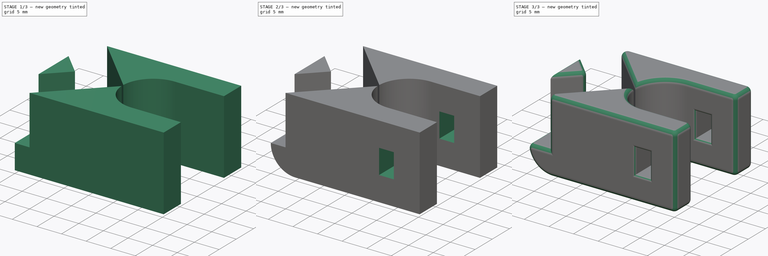
[diagram: build sequence overview — one tinted view per stage of 3, left to right]
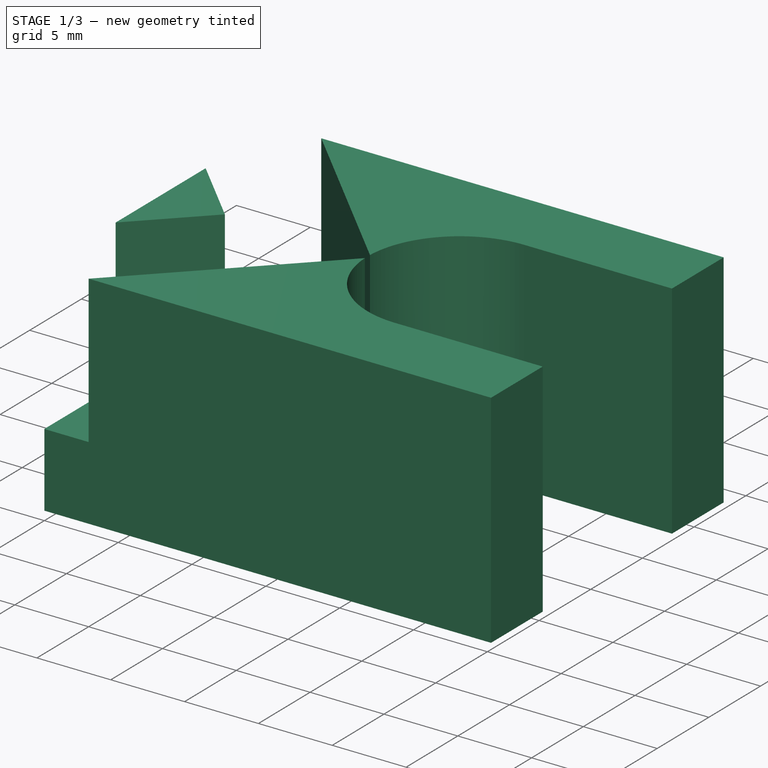
[diagram: stage 1 of 3 — iso view after this stage's code; geometry added in this stage tinted green]
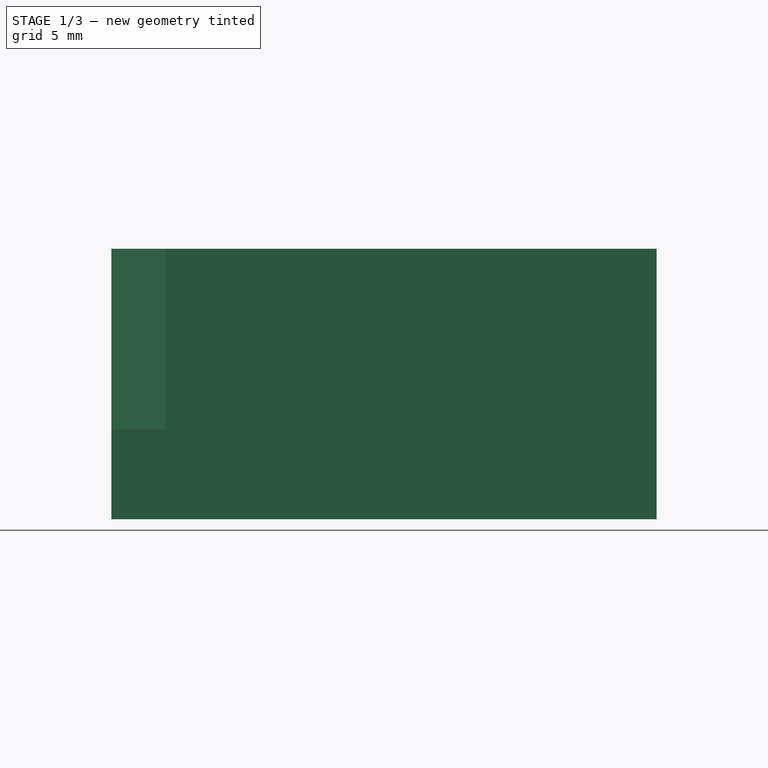
[diagram: stage 1 of 3 — front view after this stage's code; geometry added in this stage tinted green]
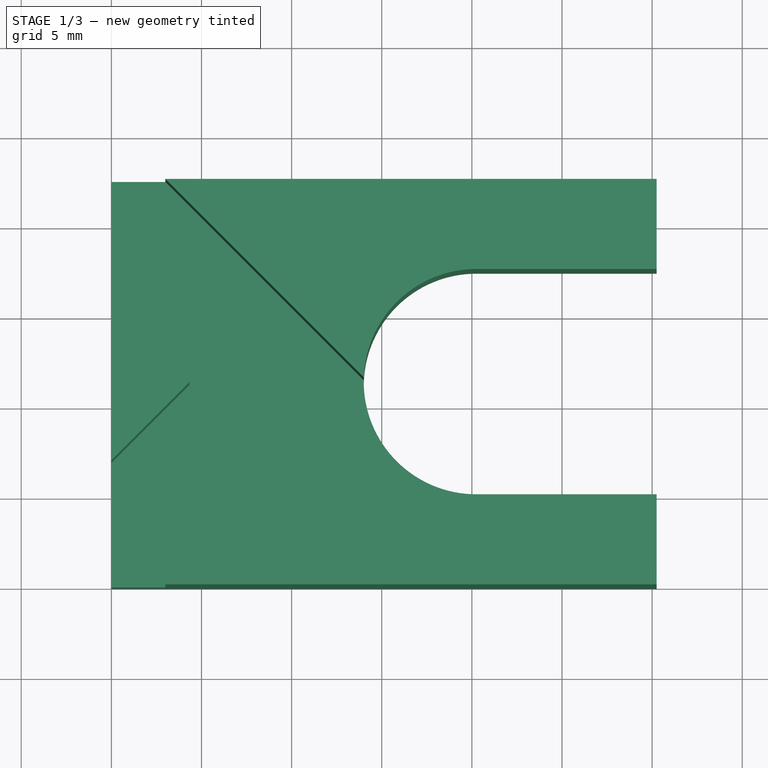
[diagram: stage 1 of 3 — top view after this stage's code; geometry added in this stage tinted green]
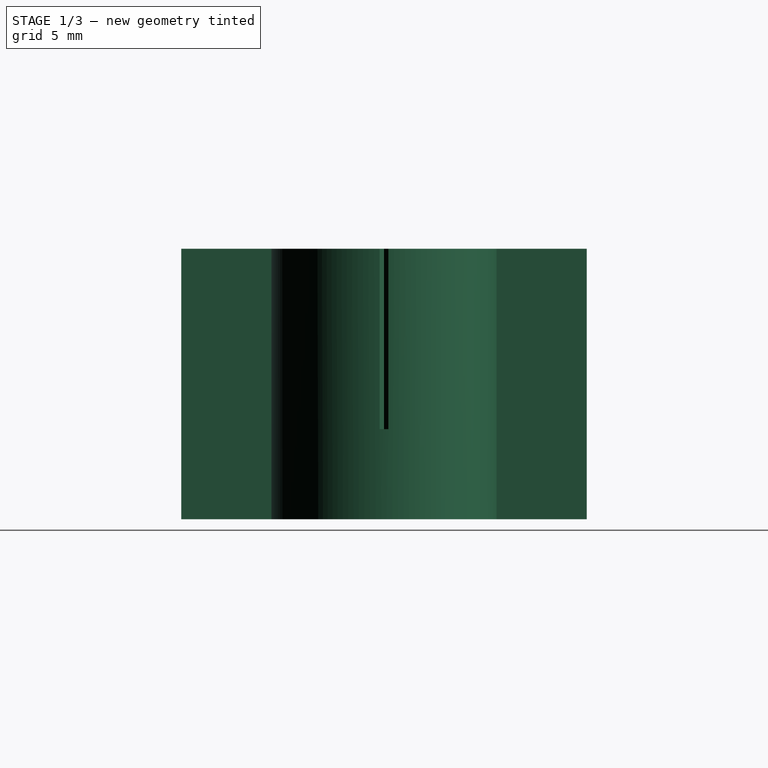
[diagram: stage 1 of 3 — right view after this stage's code; geometry added in this stage tinted green]
FCSTD DOCUMENT  (FreeCAD 0.19R)
Label: balkon_sichtschutz_ecke_v1
License: All rights reserved
LicenseURL: http://en.wikipedia.org/wiki/All_rights_reserved
objects: Sketcher::SketchObject×3, PartDesign::Fillet×3, PartDesign::Pocket×2, PartDesign::Pad×1, PartDesign::Body×1
note: 16 computed .brp shape members not serialized (recipe doc carries the construction recipe); baked Part::Feature solids carry a one-line shape summary decoded from their .brp

FEATURE [Sketcher::SketchObject] Sketch
  FullyConstrained = true
  MapMode = 5
  Support = -> [XY_Plane]
  sketch-geometry (8):
    g0: ArcOfCircle CenterX=20.25 CenterY=11.25 CenterZ=0 NormalX=0 NormalY=0 NormalZ=1 AngleXU=0 Radius=6.25 StartAngle=1.5708 EndAngle=4.71239
    g1: LineSegment StartX=20.25 StartY=17.5 StartZ=0 EndX=30.25 EndY=17.5 EndZ=0
    g2: LineSegment StartX=30.25 StartY=17.5 StartZ=0 EndX=30.25 EndY=22.5 EndZ=0
    g3: LineSegment StartX=30.25 StartY=22.5 StartZ=0 EndX=0 EndY=22.5 EndZ=0
    g4: LineSegment StartX=0 StartY=22.5 StartZ=0 EndX=0 EndY=0 EndZ=0
    g5: LineSegment StartX=0 StartY=0 StartZ=0 EndX=30.25 EndY=0 EndZ=0
    g6: LineSegment StartX=30.25 StartY=0 StartZ=0 EndX=30.25 EndY=5 EndZ=0
    g7: LineSegment StartX=30.25 StartY=5 StartZ=0 EndX=20.25 EndY=5 EndZ=0
  constraints (23):
    c: Horizontal(g1)
    c: Coincident(g1,g2)
    c: Vertical(g2)
    c: Coincident(g2,g3)
    c: Horizontal(g3)
    c: Coincident(g3,g4)
    c: Vertical(g4)
    c: Coincident(g4,g5)
    c: Horizontal(g5)
    c: Coincident(g5,g6)
    c: Vertical(g6)
    c: Coincident(g6,g7)
    c: Horizontal(g7)
    c: Tangent(g0,g1) = 1.5708
    c: Coincident(g0,g7)
    c: Vertical(g1,g6)
    c: Equal(g2,g6)
    c: Vertical(g0,g0)
    c: DistanceX(g0,g5) = 10
    c: DistanceY(g1,g2) = 5
    c: DistanceX(g4,g0) = 20.25
    c: Coincident(g-1,g4)
    c: Radius(g0) = 6.25
FEATURE [PartDesign::Pad] Pad
  Direction = (1,1,1)
  Length = 15
  Length2 = 100
  Profile = -> Sketch
  Type = 0
FEATURE [Sketcher::SketchObject] Sketch001
  FullyConstrained = true
  MapMode = 5
  Placement = pos=(0,0,15) rot=(0,0,1;0rad)
  Support = -> [Pad]
  sketch-geometry (6):
    g0: LineSegment StartX=-0.75 StartY=16.35 StartZ=0 EndX=-0.75 EndY=26.25 EndZ=0
    g1: LineSegment StartX=-0.75 StartY=26.25 StartZ=0 EndX=14.25 EndY=11.25 EndZ=0
    g2: LineSegment StartX=14.25 StartY=11.25 StartZ=0 EndX=-0.75 EndY=-3.75 EndZ=0
    g3: LineSegment StartX=-0.75 StartY=-3.75 StartZ=0 EndX=-0.75 EndY=6.15 EndZ=0
    g4: LineSegment StartX=-0.75 StartY=6.15 StartZ=0 EndX=4.35 EndY=11.25 EndZ=0
    g5: LineSegment StartX=4.35 StartY=11.25 StartZ=0 EndX=-0.75 EndY=16.35 EndZ=0
  constraints (19):
    c: Vertical(g0)
    c: Coincident(g0,g1)
    c: Coincident(g1,g2)
    c: Coincident(g2,g3)
    c: Vertical(g3)
    c: Coincident(g3,g4)
    c: Coincident(g4,g5)
    c: Coincident(g5,g0)
    c: Vertical(g0,g3)
    c: Horizontal(g4,g1)
    c: Angle(g5,g4) = 1.5708
    c: Angle(g1,g2) = 1.5708
    c: Equal(g3,g0)
    c: DistanceX(g4,g1) = 9.9
    c: Angle(g2,g3) = 0.785398
    c: DistanceY(g2,g0) = 30
    c: Vertical(g2,g-1)
    c: DistanceY(g2,g-1) = 3.75
    c: DistanceX(g2,g-1) = 0.75
FEATURE [PartDesign::Pocket] Pocket
  BaseFeature = -> Pad
  Length = 10
  Length2 = 100
  Profile = -> Sketch001
  Type = 0
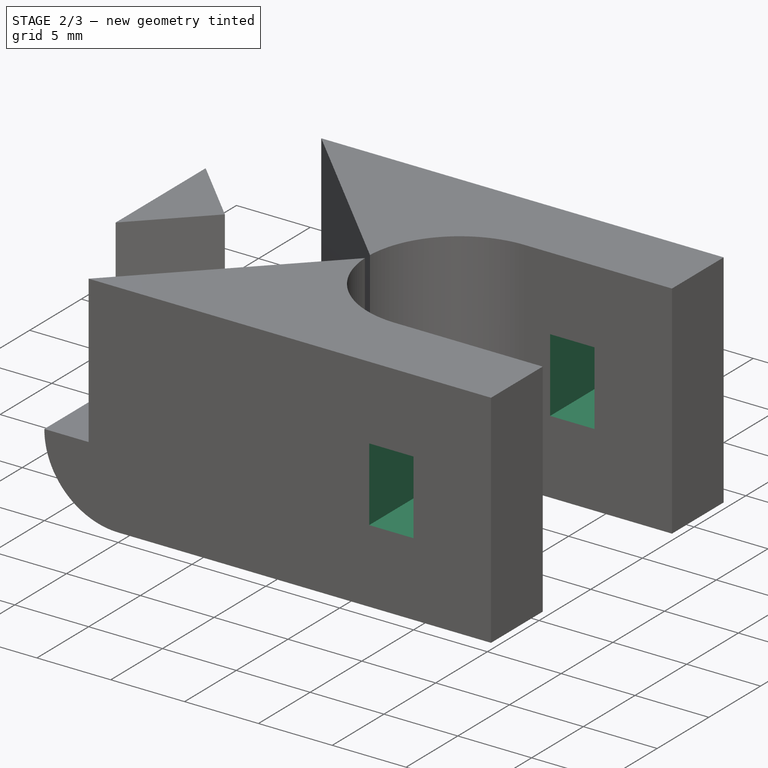
[diagram: stage 2 of 3 — iso view after this stage's code; geometry added in this stage tinted green]
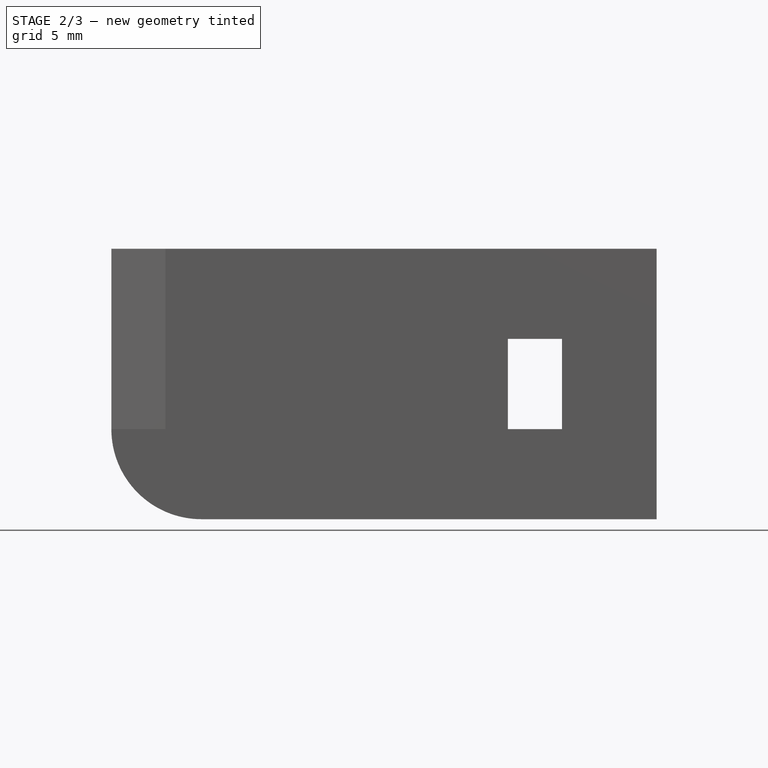
[diagram: stage 2 of 3 — front view after this stage's code; geometry added in this stage tinted green]
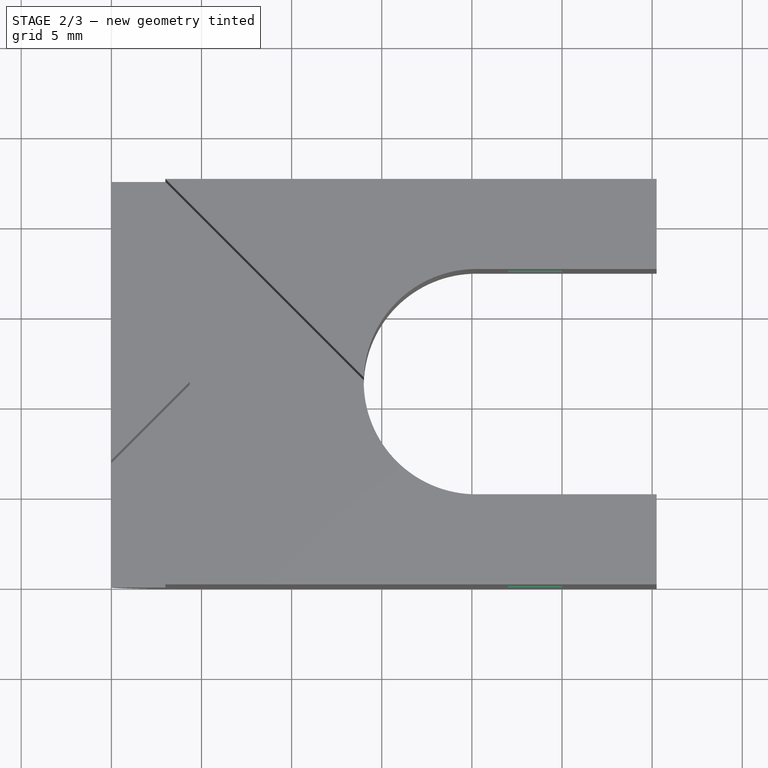
[diagram: stage 2 of 3 — top view after this stage's code; geometry added in this stage tinted green]
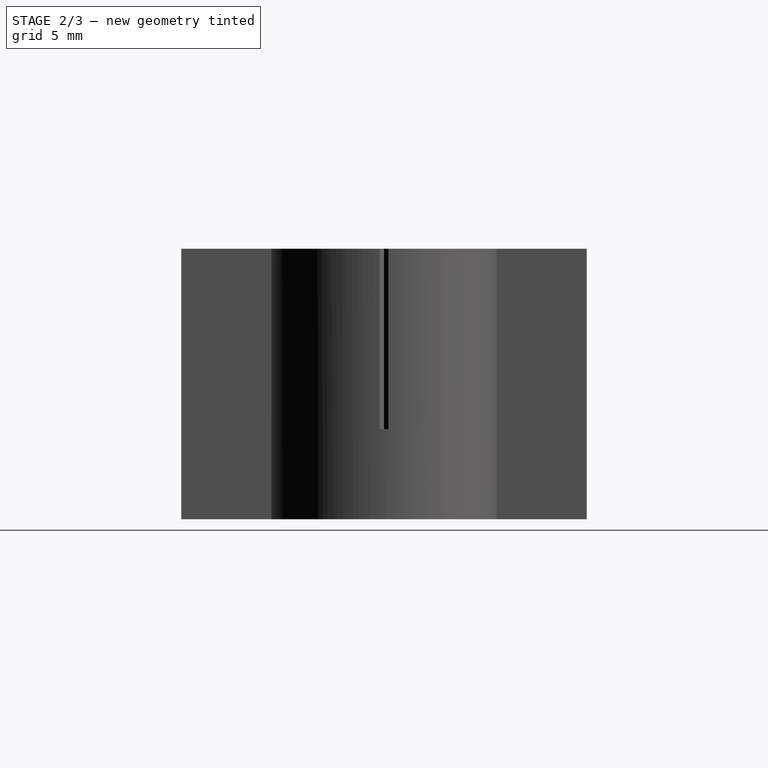
[diagram: stage 2 of 3 — right view after this stage's code; geometry added in this stage tinted green]
FEATURE [PartDesign::Fillet] Fillet
  Base = -> Pocket [Edge12]
  BaseFeature = -> Pocket
  Radius = 5
  SupportTransform = false
FEATURE [Sketcher::SketchObject] Sketch002
  FullyConstrained = true
  MapMode = 5
  Placement = pos=(0,0,0) rot=(1,0,0;1.5708rad)
  Support = -> [Fillet]
  sketch-geometry (4):
    g0: LineSegment StartX=22 StartY=10 StartZ=0 EndX=25 EndY=10 EndZ=0
    g1: LineSegment StartX=25 StartY=10 StartZ=0 EndX=25 EndY=5 EndZ=0
    g2: LineSegment StartX=25 StartY=5 StartZ=0 EndX=22 EndY=5 EndZ=0
    g3: LineSegment StartX=22 StartY=5 StartZ=0 EndX=22 EndY=10 EndZ=0
  constraints (12):
    c: Coincident(g0,g1)
    c: Coincident(g1,g2)
    c: Coincident(g2,g3)
    c: Coincident(g3,g0)
    c: Horizontal(g0)
    c: Horizontal(g2)
    c: Vertical(g1)
    c: Vertical(g3)
    c: DistanceX(g0,g0) = 3
    c: DistanceY(g1,g1) = 5
    c: DistanceX(g-1,g2) = 22
    c: DistanceY(g-1,g2) = 5
FEATURE [PartDesign::Pocket] Pocket001
  BaseFeature = -> Fillet
  Length = 5
  Length2 = 100
  Profile = -> Sketch002
  Type = 1
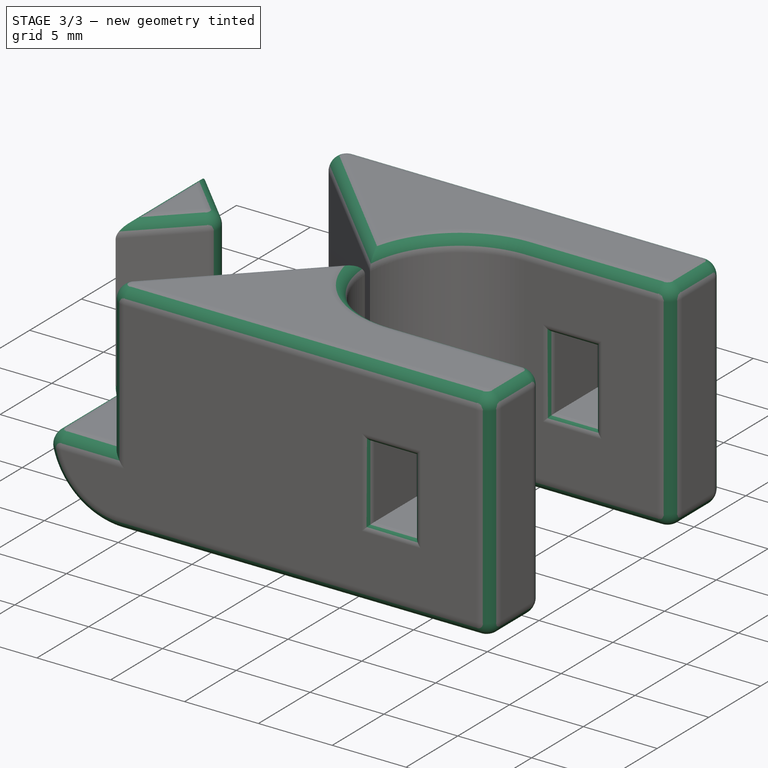
[diagram: stage 3 of 3 — iso view after this stage's code; geometry added in this stage tinted green]
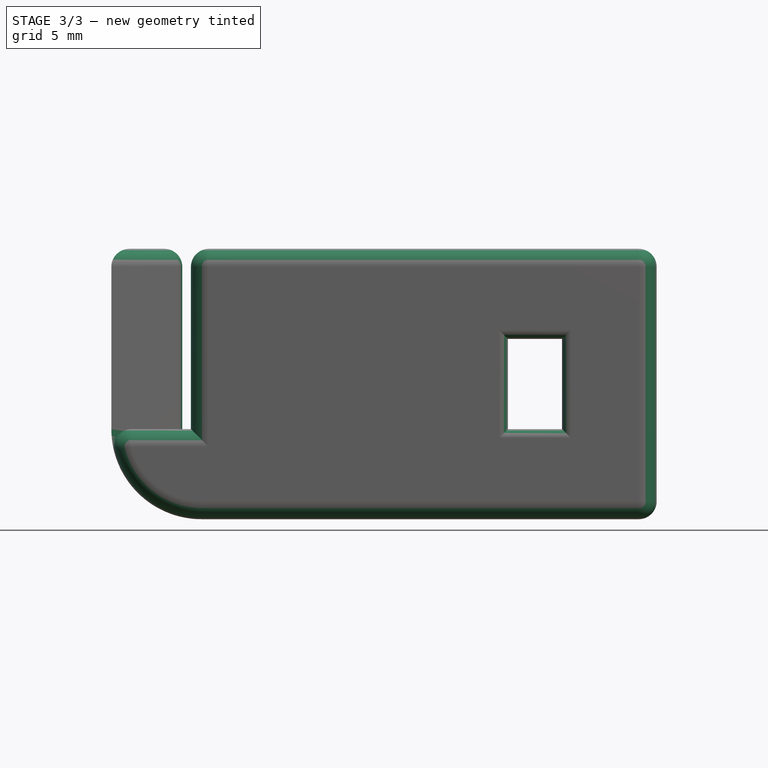
[diagram: stage 3 of 3 — front view after this stage's code; geometry added in this stage tinted green]
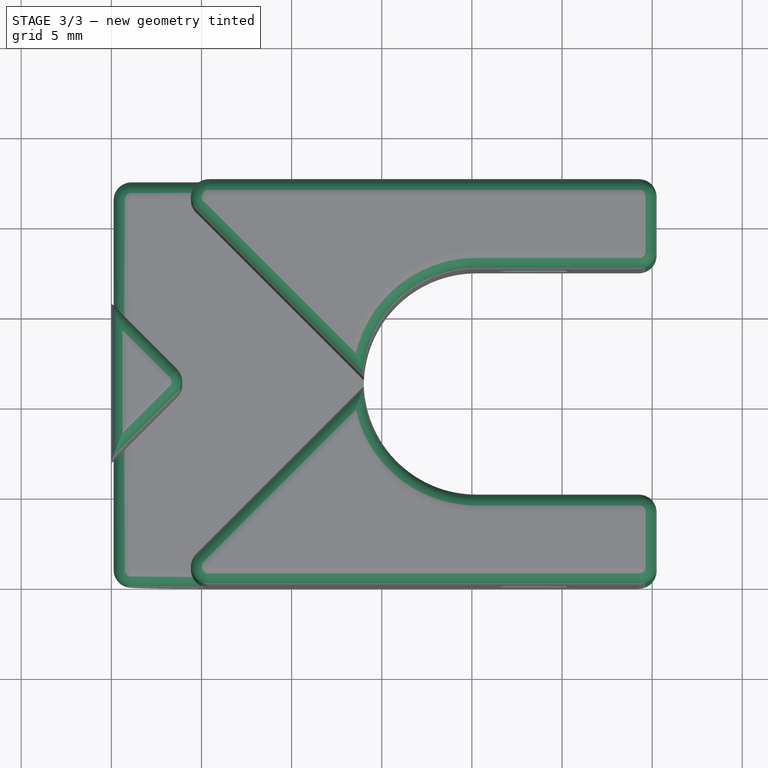
[diagram: stage 3 of 3 — top view after this stage's code; geometry added in this stage tinted green]
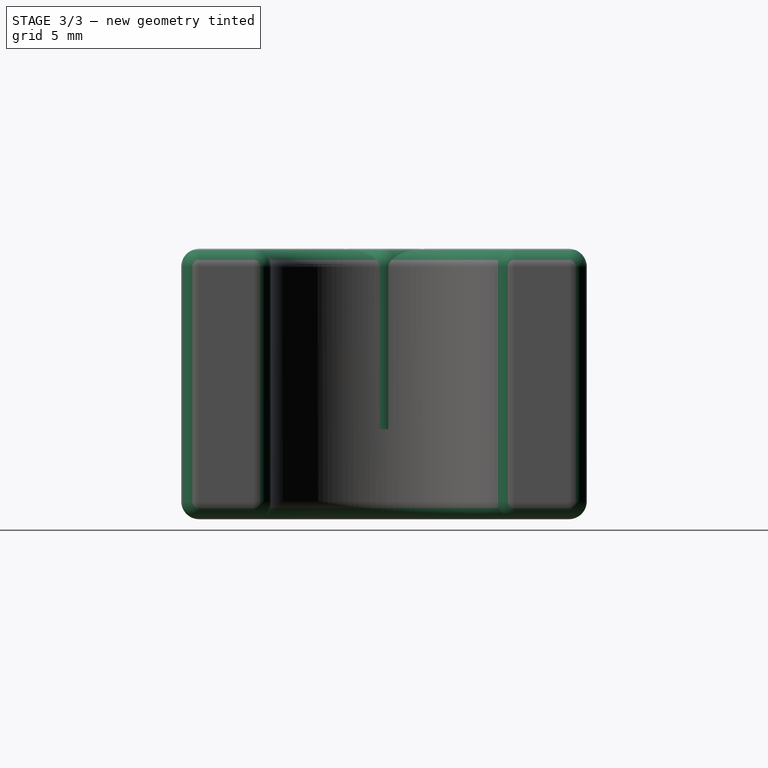
[diagram: stage 3 of 3 — right view after this stage's code; geometry added in this stage tinted green]
FEATURE [PartDesign::Fillet] Fillet001
  Base = -> Pocket001 [Edge4,Edge24,Edge38,Edge6,Edge39,Edge8,Edge7,Edge5,Edge22,Edge3,Edge10,Edge23,Edge1,Edge12,Edge26,Edge40,Edge44,Edge46,Edge32,Edge63,Edge55,Edge69,Edge70,Edge62,Edge27,Edge13,Edge21,Edge11,Edge68,Edge25,Edge19]
  BaseFeature = -> Pocket001
  Radius = 1
  SupportTransform = false
FEATURE [PartDesign::Fillet] Fillet002
  Base = -> Fillet001 [Edge63,Edge60,Edge61,Edge62,Edge96,Edge97,Edge94,Edge95,Edge90,Edge89,Edge88,Edge87,Edge68,Edge71,Edge70,Edge69]
  BaseFeature = -> Fillet001
  Radius = 0.5
  SupportTransform = false
FEATURE [PartDesign::Body] Body
  Group = -> [Sketch,Pad,Sketch001,Pocket,Fillet,Sketch002,Pocket001,Fillet001,Fillet002]
  Origin = -> Origin
  Tip = -> Fillet002
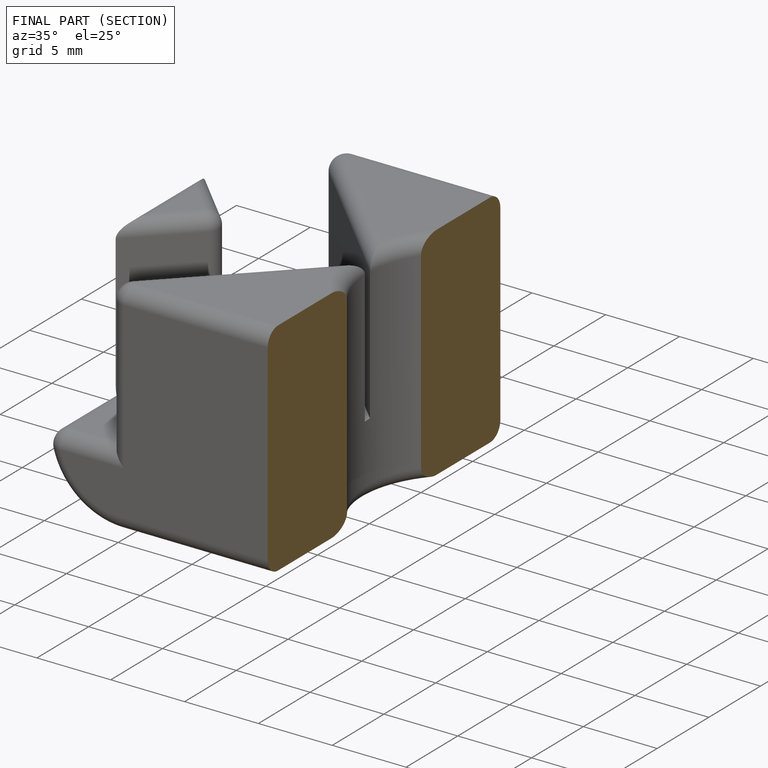
[diagram: finished part — half-section view (interior)]
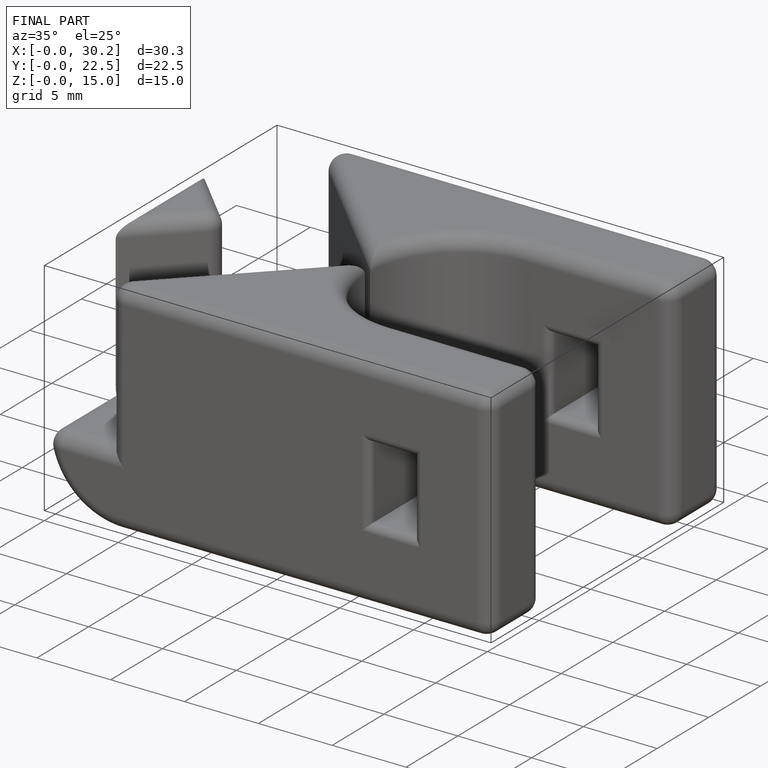
[diagram: finished part — iso view with bounding-box wireframe]
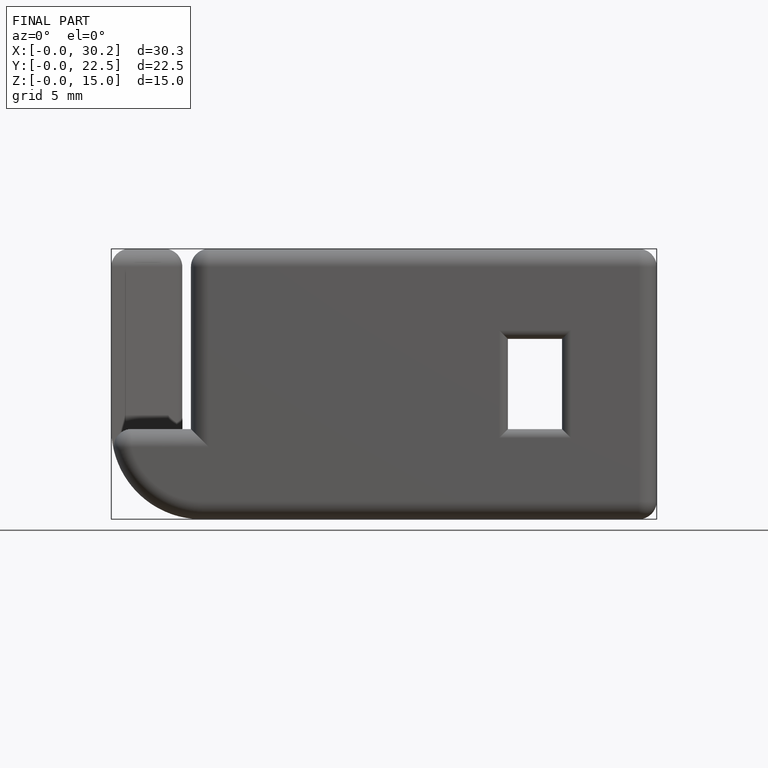
[diagram: finished part — front view with bounding-box wireframe]
